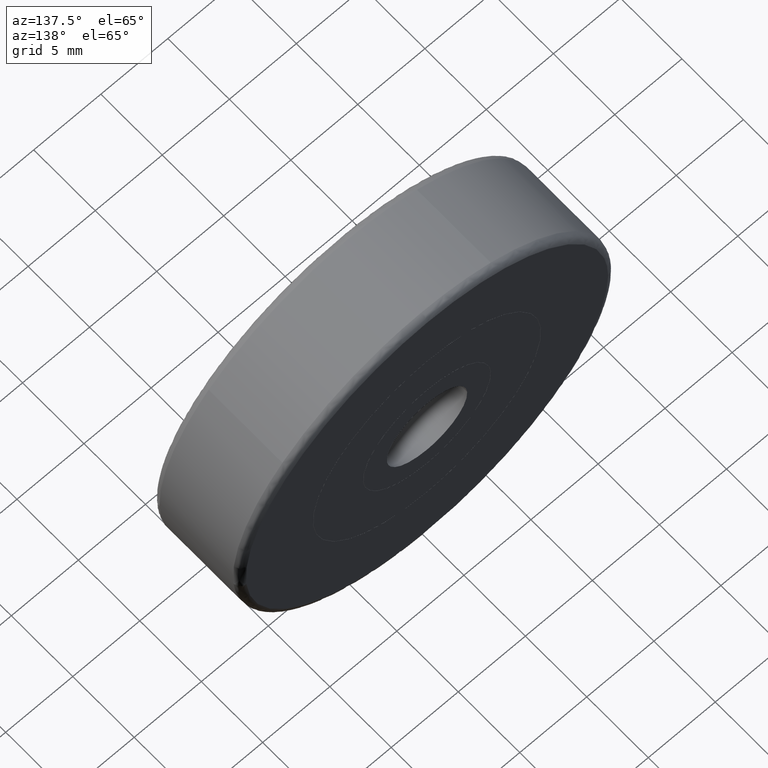
[diagram: clean part render]
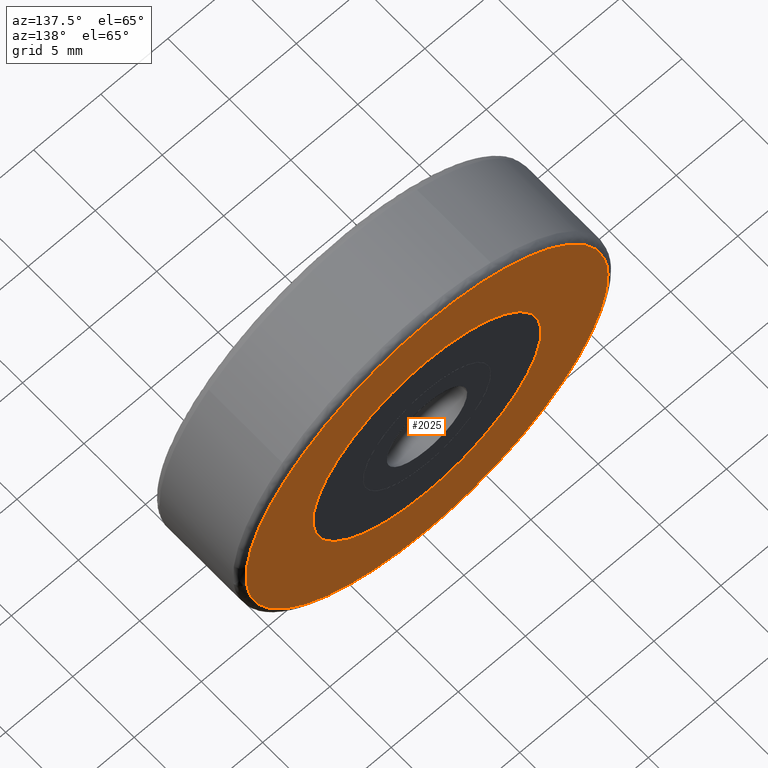
[diagram: same view with one face highlighted and labeled with its STEP entity id]
A machine part, auxiliary view. The second image highlights one B-rep face of the part: STEP entity #2025.
In plain terms, the highlighted face is a freeform B-spline surface patch.
Its self-contained STEP definition (entity closure, byte-faithful):
#79=CARTESIAN_POINT('',(-8.473798049417233,7.0,0.666893258033228));
#80=VERTEX_POINT('',#79);
#86=CARTESIAN_POINT('',(0.0,7.0,8.500000000000000));
#87=VERTEX_POINT('',#86);
#88=CARTESIAN_POINT('',(0.0,7.0,8.500000000000000));
#89=CARTESIAN_POINT('',(-7.857327601907542,6.999999999999999,8.500000000000000));
#90=CARTESIAN_POINT('',(-8.473798049417233,7.0,0.666893258033228));
#98=(BOUNDED_CURVE()B_SPLINE_CURVE(2,(#88,#89,#90),.UNSPECIFIED.,.F.,.U.)B_SPLINE_CURVE_WITH_KNOTS((3,3),(0.0,0.236331483828198),.UNSPECIFIED.)CURVE()GEOMETRIC_REPRESENTATION_ITEM()RATIONAL_B_SPLINE_CURVE((1.0,0.723120443978399,0.969723738487018))REPRESENTATION_ITEM(''));
#99=EDGE_CURVE('',#87,#80,#98,.T.);
#101=CARTESIAN_POINT('',(8.473798049417233,7.0,-0.666893258033227));
#102=VERTEX_POINT('',#101);
#103=CARTESIAN_POINT('',(8.473798049417233,7.0,-0.666893258033227));
#104=CARTESIAN_POINT('',(8.500000000000000,7.0,-0.333961360726728));
#105=CARTESIAN_POINT('',(8.500000000000000,7.0,0.0));
#106=CARTESIAN_POINT('',(8.500000000000002,6.999999999999999,8.500000000000002));
#107=CARTESIAN_POINT('',(0.0,7.0,8.500000000000000));
#115=(BOUNDED_CURVE()B_SPLINE_CURVE(2,(#103,#104,#105,#106,#107),.UNSPECIFIED.,.F.,.U.)B_SPLINE_CURVE_WITH_KNOTS((3,2,3),(0.736331483828198,0.750000000000000,1.0),.UNSPECIFIED.)CURVE()GEOMETRIC_REPRESENTATION_ITEM()RATIONAL_B_SPLINE_CURVE((0.969723738487018,0.983986337208148,1.0,0.707106781186548,1.0))REPRESENTATION_ITEM(''));
#116=EDGE_CURVE('',#102,#87,#115,.T.);
#192=CARTESIAN_POINT('',(0.0,7.0,-8.500000000000000));
#193=VERTEX_POINT('',#192);
#194=CARTESIAN_POINT('',(0.0,7.0,-8.500000000000000));
#195=CARTESIAN_POINT('',(7.857327601907540,7.0,-8.500000000000000));
#196=CARTESIAN_POINT('',(8.473798049417233,7.0,-0.666893258033227));
#204=(BOUNDED_CURVE()B_SPLINE_CURVE(2,(#194,#195,#196),.UNSPECIFIED.,.F.,.U.)B_SPLINE_CURVE_WITH_KNOTS((3,3),(0.500000000000000,0.736331483828198),.UNSPECIFIED.)CURVE()GEOMETRIC_REPRESENTATION_ITEM()RATIONAL_B_SPLINE_CURVE((1.0,0.723120443978399,0.969723738487018))REPRESENTATION_ITEM(''));
#205=EDGE_CURVE('',#193,#102,#204,.T.);
#207=CARTESIAN_POINT('',(-8.473798049417233,7.0,0.666893258033228));
#208=CARTESIAN_POINT('',(-8.500000000000000,7.0,0.333961360726728));
#209=CARTESIAN_POINT('',(-8.500000000000000,7.0,0.0));
#210=CARTESIAN_POINT('',(-8.500000000000002,6.999999999999999,-8.500000000000002));
#211=CARTESIAN_POINT('',(0.0,7.0,-8.500000000000000));
#219=(BOUNDED_CURVE()B_SPLINE_CURVE(2,(#207,#208,#209,#210,#211),.UNSPECIFIED.,.F.,.U.)B_SPLINE_CURVE_WITH_KNOTS((3,2,3),(0.236331483828198,0.250000000000000,0.500000000000000),.UNSPECIFIED.)CURVE()GEOMETRIC_REPRESENTATION_ITEM()RATIONAL_B_SPLINE_CURVE((0.969723738487018,0.983986337208148,1.0,0.707106781186548,1.0))REPRESENTATION_ITEM(''));
#220=EDGE_CURVE('',#80,#193,#219,.T.);
#1757=CARTESIAN_POINT('',(13.467136599023259,7.0,-0.941398896463548));
#1758=VERTEX_POINT('',#1757);
#1772=CARTESIAN_POINT('',(0.0,7.0,13.500000000000000));
#1773=VERTEX_POINT('',#1772);
#1774=CARTESIAN_POINT('',(13.467136599023259,7.0,-0.941398896463548));
#1775=CARTESIAN_POINT('',(13.500000000000002,6.999999999999999,-0.471273064351430));
#1776=CARTESIAN_POINT('',(13.500000000000000,7.0,-1.642359E-016));
#1777=CARTESIAN_POINT('',(13.500000000000000,6.999999999999999,13.500000000000000));
#1778=CARTESIAN_POINT('',(0.0,7.0,13.500000000000000));
#1786=(BOUNDED_CURVE()B_SPLINE_CURVE(2,(#1774,#1775,#1776,#1777,#1778),.UNSPECIFIED.,.F.,.U.)B_SPLINE_CURVE_WITH_KNOTS((3,2,3),(0.237833686534045,0.250000000000000,0.500000000000000),.UNSPECIFIED.)CURVE()GEOMETRIC_REPRESENTATION_ITEM()RATIONAL_B_SPLINE_CURVE((0.972879876384762,0.985746277151452,1.0,0.707106781186548,1.0))REPRESENTATION_ITEM(''));
#1787=EDGE_CURVE('',#1758,#1773,#1786,.T.);
#1789=CARTESIAN_POINT('',(-13.498934098885870,7.0,0.169641538498509));
#1790=VERTEX_POINT('',#1789);
#1791=CARTESIAN_POINT('',(0.0,7.0,13.500000000000000));
#1792=CARTESIAN_POINT('',(-13.331411053657073,6.999999999999999,13.499999999999998));
#1793=CARTESIAN_POINT('',(-13.498934098885867,7.000000000000001,0.169641538498509));
#1801=(BOUNDED_CURVE()B_SPLINE_CURVE(2,(#1791,#1792,#1793),.UNSPECIFIED.,.F.,.U.)B_SPLINE_CURVE_WITH_KNOTS((3,3),(0.500000000000000,0.747784295920519),.UNSPECIFIED.)CURVE()GEOMETRIC_REPRESENTATION_ITEM()RATIONAL_B_SPLINE_CURVE((1.0,0.709702639985657,0.994854295641229))REPRESENTATION_ITEM(''));
#1802=EDGE_CURVE('',#1773,#1790,#1801,.T.);
#1848=CARTESIAN_POINT('',(0.0,7.0,-13.500000000000000));
#1849=VERTEX_POINT('',#1848);
#1850=CARTESIAN_POINT('',(-13.498934098885863,7.000000000000001,0.169641538498509));
#1851=CARTESIAN_POINT('',(-13.500000000000002,7.000000000000001,0.084824117936941));
#1852=CARTESIAN_POINT('',(-13.500000000000000,7.0,-1.642359E-016));
#1853=CARTESIAN_POINT('',(-13.500000000000000,6.999999999999999,-13.500000000000000));
#1854=CARTESIAN_POINT('',(0.0,7.0,-13.500000000000000));
#1862=(BOUNDED_CURVE()B_SPLINE_CURVE(2,(#1850,#1851,#1852,#1853,#1854),.UNSPECIFIED.,.F.,.U.)B_SPLINE_CURVE_WITH_KNOTS((3,2,3),(0.747784295920519,0.750000000000000,1.0),.UNSPECIFIED.)CURVE()GEOMETRIC_REPRESENTATION_ITEM()RATIONAL_B_SPLINE_CURVE((0.994854295641228,0.997404141200890,1.0,0.707106781186548,1.0))REPRESENTATION_ITEM(''));
#1863=EDGE_CURVE('',#1790,#1849,#1862,.T.);
#1865=CARTESIAN_POINT('',(0.0,7.0,-13.500000000000000));
#1866=CARTESIAN_POINT('',(12.589247438019397,7.0,-13.500000000000002));
#1867=CARTESIAN_POINT('',(13.467136599023261,7.0,-0.941398896463548));
#1875=(BOUNDED_CURVE()B_SPLINE_CURVE(2,(#1865,#1866,#1867),.UNSPECIFIED.,.F.,.U.)B_SPLINE_CURVE_WITH_KNOTS((3,3),(0.0,0.237833686534045),.UNSPECIFIED.)CURVE()GEOMETRIC_REPRESENTATION_ITEM()RATIONAL_B_SPLINE_CURVE((1.0,0.721360504035096,0.972879876384762))REPRESENTATION_ITEM(''));
#1876=EDGE_CURVE('',#1849,#1758,#1875,.T.);
#2008=CARTESIAN_POINT('',(-14.847453621401391,7.0,14.848649947668759));
#2009=CARTESIAN_POINT('',(-14.847453621401391,7.0,-14.848650671865190));
#2010=CARTESIAN_POINT('',(14.846980348708639,7.0,14.848649947668759));
#2011=CARTESIAN_POINT('',(14.846980348708639,7.0,-14.848650671865190));
#2012=B_SPLINE_SURFACE_WITH_KNOTS('',1,1,((#2008,#2010),(#2009,#2011)),.UNSPECIFIED.,.F.,.F.,.U.,(2,2),(2,2),(0.0,29.697300619533959),(0.0,29.694433970110019),.UNSPECIFIED.);
#2013=ORIENTED_EDGE('',*,*,#1863,.F.);
#2014=ORIENTED_EDGE('',*,*,#1802,.F.);
#2015=ORIENTED_EDGE('',*,*,#1787,.F.);
#2016=ORIENTED_EDGE('',*,*,#1876,.F.);
#2017=EDGE_LOOP('',(#2013,#2014,#2015,#2016));
#2018=FACE_OUTER_BOUND('',#2017,.T.);
#2019=ORIENTED_EDGE('',*,*,#205,.T.);
#2020=ORIENTED_EDGE('',*,*,#116,.T.);
#2021=ORIENTED_EDGE('',*,*,#99,.T.);
#2022=ORIENTED_EDGE('',*,*,#220,.T.);
#2023=EDGE_LOOP('',(#2019,#2020,#2021,#2022));
#2024=FACE_BOUND('',#2023,.T.);
#2025=ADVANCED_FACE('',(#2018,#2024),#2012,.F.);